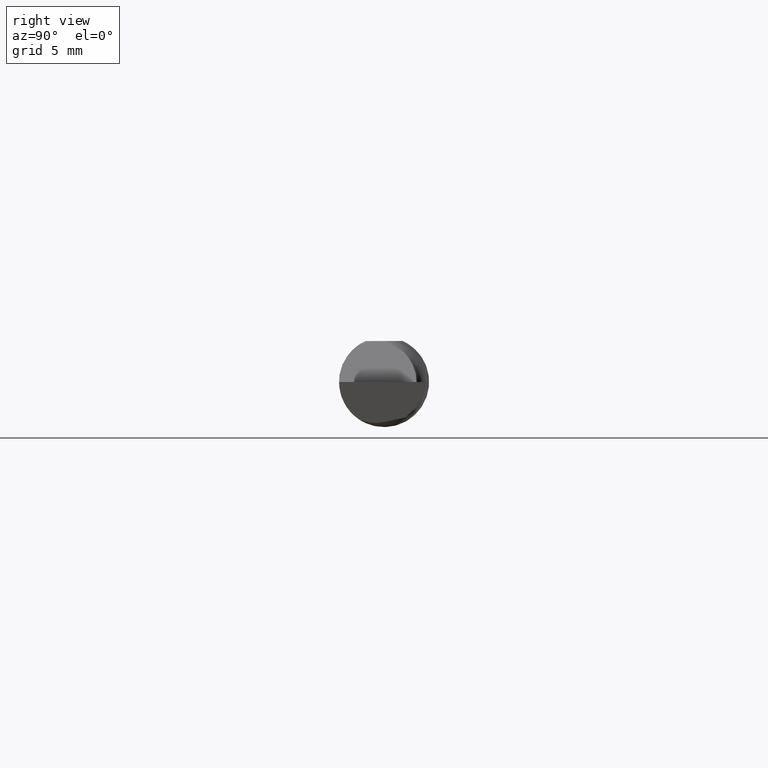
[diagram: clean part render]
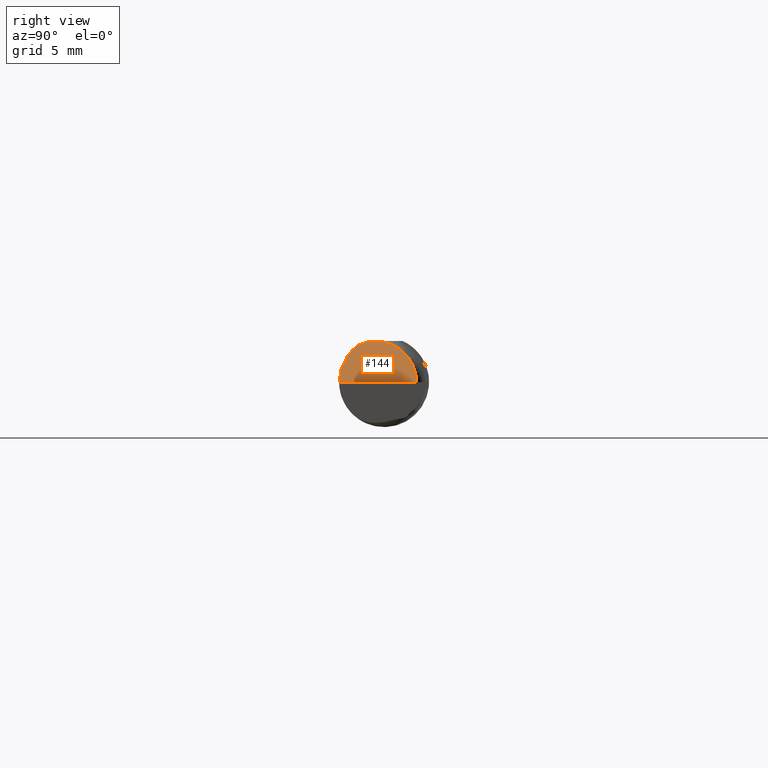
[diagram: same view with one face highlighted and labeled with its STEP entity id]
A machine part, right view. The second image highlights one B-rep face of the part: STEP entity #144.
In plain terms, the highlighted planar face has unit normal (0.7071, 0, 0.7071).
Its self-contained STEP definition (entity closure, byte-faithful):
#2 = VERTEX_POINT ( 'NONE', #699 ) ;
#12 = CARTESIAN_POINT ( 'NONE',  ( 1.656999999999999806, -0.02688458484400722479, 0.1130999778995751964 ) ) ;
#28 = DIRECTION ( 'NONE',  ( 0.7071067811865441310, 0.000000000000000000, -0.7071067811865509034 ) ) ;
#37 = CARTESIAN_POINT ( 'NONE',  ( 1.656999999999999806, -0.02299999999999993369, 0.1130750000000003003 ) ) ;
#51 = CARTESIAN_POINT ( 'NONE',  ( 1.656999999999999806, -0.02105770746417996372, 0.1131499999999999451 ) ) ;
#56 = CARTESIAN_POINT ( 'NONE',  ( 1.656999999999999806, -0.02882430253333670075, 0.1130000000000006416 ) ) ;
#60 = VERTEX_POINT ( 'NONE', #367 ) ;
#108 = VERTEX_POINT ( 'NONE', #417 ) ;
#143 = ORIENTED_EDGE ( 'NONE', *, *, #464, .F. ) ;
#144 = ADVANCED_FACE ( 'NONE', ( #297 ), #184, .T. ) ;
#168 = CARTESIAN_POINT ( 'NONE',  ( 1.706393624378059748, 0.09014999999999998015, 0.06360637562194031147 ) ) ;
#184 = PLANE ( 'NONE',  #401 ) ;
#189 = EDGE_LOOP ( 'NONE', ( #418, #329, #728, #244, #143, #640 ) ) ;
#194 = EDGE_CURVE ( 'NONE', #2, #60, #646, .T. ) ;
#210 = CARTESIAN_POINT ( 'NONE',  ( 1.769999999999999352, -0.1248500000000000026, -2.675152579924983035E-17 ) ) ;
#218 = CARTESIAN_POINT ( 'NONE',  ( 1.668026902594271554, -0.07203478260869308758, 0.1019730974057288381 ) ) ;
#244 = ORIENTED_EDGE ( 'NONE', *, *, #278, .F. ) ;
#247 = DIRECTION ( 'NONE',  ( 0.000000000000000000, -1.000000000000000000, 0.000000000000000000 ) ) ;
#278 = EDGE_CURVE ( 'NONE', #324, #369, #338, .T. ) ;
#285 = CARTESIAN_POINT ( 'NONE',  ( 1.656999999999999806, -0.02494229253581972672, 0.1131499999999999451 ) ) ;
#297 = FACE_OUTER_BOUND ( 'NONE', #189, .T. ) ;
#305 = VERTEX_POINT ( 'NONE', #444 ) ;
#324 = VERTEX_POINT ( 'NONE', #514 ) ;
#329 = ORIENTED_EDGE ( 'NONE', *, *, #194, .F. ) ;
#337 = CARTESIAN_POINT ( 'NONE',  ( 1.656999999999999806, -0.01717569746666252131, 0.1130000000000006416 ) ) ;
#338 =( BOUNDED_CURVE ( )  B_SPLINE_CURVE ( 3, ( #218, #441, #677, #385 ),
 .UNSPECIFIED., .F., .T. ) 
 B_SPLINE_CURVE_WITH_KNOTS ( ( 4, 4 ),
 ( 5.834966614914089966, 6.231688377374378085 ),
 .UNSPECIFIED. ) 
 CURVE ( )  GEOMETRIC_REPRESENTATION_ITEM ( )  RATIONAL_B_SPLINE_CURVE ( ( 1.000000000000000000, 0.9869272691648760532, 0.9869272691648760532, 1.000000000000000000 ) ) 
 REPRESENTATION_ITEM ( '' )  );
#352 = B_SPLINE_CURVE_WITH_KNOTS ( 'NONE', 3,
 ( #576, #12, #285, #511 ),
 .UNSPECIFIED., .F., .F.,
 ( 4, 4 ),
 ( 0.000000000000000000, 0.4999999999999781286 ),
 .UNSPECIFIED. ) ;
#366 = VECTOR ( 'NONE', #247, 39.37007874015748143 ) ;
#367 = CARTESIAN_POINT ( 'NONE',  ( 1.656999999999999806, -0.01717569746666252131, 0.1130000000000006416 ) ) ;
#369 = VERTEX_POINT ( 'NONE', #56 ) ;
#370 = EDGE_CURVE ( 'NONE', #369, #2, #352, .T. ) ;
#385 = CARTESIAN_POINT ( 'NONE',  ( 1.656999999999999806, -0.02882430253333670075, 0.1130000000000006416 ) ) ;
#389 = CARTESIAN_POINT ( 'NONE',  ( 1.660274085503059771, 0.04634635684424533164, 0.1097259144969406908 ) ) ;
#394 = CARTESIAN_POINT ( 'NONE',  ( 1.668026902594271554, -0.07203478260869308758, 0.1019730974057288381 ) ) ;
#401 = AXIS2_PLACEMENT_3D ( 'NONE', #657, #419, #28 ) ;
#417 = CARTESIAN_POINT ( 'NONE',  ( 1.769999999999999352, 0.09014999999999989688, -2.675152579924983035E-17 ) ) ;
#418 = ORIENTED_EDGE ( 'NONE', *, *, #488, .F. ) ;
#419 = DIRECTION ( 'NONE',  ( 0.7071067811865509034, 0.000000000000000000, 0.7071067811865441310 ) ) ;
#441 = CARTESIAN_POINT ( 'NONE',  ( 1.661499624789619878, -0.05846060729971569447, 0.1085003752103801677 ) ) ;
#444 = CARTESIAN_POINT ( 'NONE',  ( 1.769999999999999352, -0.1248500000000000026, -2.675152579924983035E-17 ) ) ;
#456 = LINE ( 'NONE', #582, #366 ) ;
#464 = EDGE_CURVE ( 'NONE', #305, #324, #616, .T. ) ;
#488 = EDGE_CURVE ( 'NONE', #60, #108, #703, .T. ) ;
#505 = CARTESIAN_POINT ( 'NONE',  ( 1.656999999999999806, -0.01911541515599229912, 0.1130999778995751825 ) ) ;
#511 = CARTESIAN_POINT ( 'NONE',  ( 1.656999999999999806, -0.02299999999999993369, 0.1130750000000003003 ) ) ;
#514 = CARTESIAN_POINT ( 'NONE',  ( 1.668026902594271554, -0.07203478260869308758, 0.1019730974057288381 ) ) ;
#569 = EDGE_CURVE ( 'NONE', #108, #305, #456, .T. ) ;
#576 = CARTESIAN_POINT ( 'NONE',  ( 1.656999999999999806, -0.02882430253333670075, 0.1130000000000006416 ) ) ;
#582 = CARTESIAN_POINT ( 'NONE',  ( 1.769999999999999352, -0.1248500000000000026, -2.675152579924983035E-17 ) ) ;
#614 = CARTESIAN_POINT ( 'NONE',  ( 1.656999999999999806, -0.01717569746666252131, 0.1130000000000006416 ) ) ;
#616 =( BOUNDED_CURVE ( )  B_SPLINE_CURVE ( 3, ( #210, #619, #692, #394 ),
 .UNSPECIFIED., .F., .T. ) 
 B_SPLINE_CURVE_WITH_KNOTS ( ( 4, 4 ),
 ( 4.712388980384689674, 5.668170488629488801 ),
 .UNSPECIFIED. ) 
 CURVE ( )  GEOMETRIC_REPRESENTATION_ITEM ( )  RATIONAL_B_SPLINE_CURVE ( ( 1.000000000000000000, 0.9253113031975074287, 0.9253113031975074287, 1.000000000000000000 ) ) 
 REPRESENTATION_ITEM ( '' )  );
#619 = CARTESIAN_POINT ( 'NONE',  ( 1.728630555915133149, -0.1248500000000000304, 0.04136944408486662589 ) ) ;
#631 = CARTESIAN_POINT ( 'NONE',  ( 1.769999999999999352, 0.09014999999999989688, -2.675152579924983035E-17 ) ) ;
#640 = ORIENTED_EDGE ( 'NONE', *, *, #569, .F. ) ;
#646 = B_SPLINE_CURVE_WITH_KNOTS ( 'NONE', 3,
 ( #37, #51, #505, #337 ),
 .UNSPECIFIED., .F., .F.,
 ( 4, 4 ),
 ( 0.4999999999999781286, 1.000000000000000000 ),
 .UNSPECIFIED. ) ;
#657 = CARTESIAN_POINT ( 'NONE',  ( 1.656999999999999806, 0.1248500000000000026, 0.1130000000000006416 ) ) ;
#677 = CARTESIAN_POINT ( 'NONE',  ( 1.657775303542319723, -0.04386632684109578045, 0.1122246964576803646 ) ) ;
#692 = CARTESIAN_POINT ( 'NONE',  ( 1.691895856629480610, -0.1058238923506794327, 0.07810414337051989342 ) ) ;
#699 = CARTESIAN_POINT ( 'NONE',  ( 1.656999999999999806, -0.02299999999999993369, 0.1130750000000003003 ) ) ;
#703 =( BOUNDED_CURVE ( )  B_SPLINE_CURVE ( 3, ( #614, #389, #168, #631 ),
 .UNSPECIFIED., .F., .F. ) 
 B_SPLINE_CURVE_WITH_KNOTS ( ( 4, 4 ),
 ( 0.05149692980520838292, 1.570796326794896780 ),
 .UNSPECIFIED. ) 
 CURVE ( )  GEOMETRIC_REPRESENTATION_ITEM ( )  RATIONAL_B_SPLINE_CURVE ( ( 1.000000000000000000, 0.8167181976549319211, 0.8167181976549319211, 1.000000000000000000 ) ) 
 REPRESENTATION_ITEM ( '' )  );
#728 = ORIENTED_EDGE ( 'NONE', *, *, #370, .F. ) ;